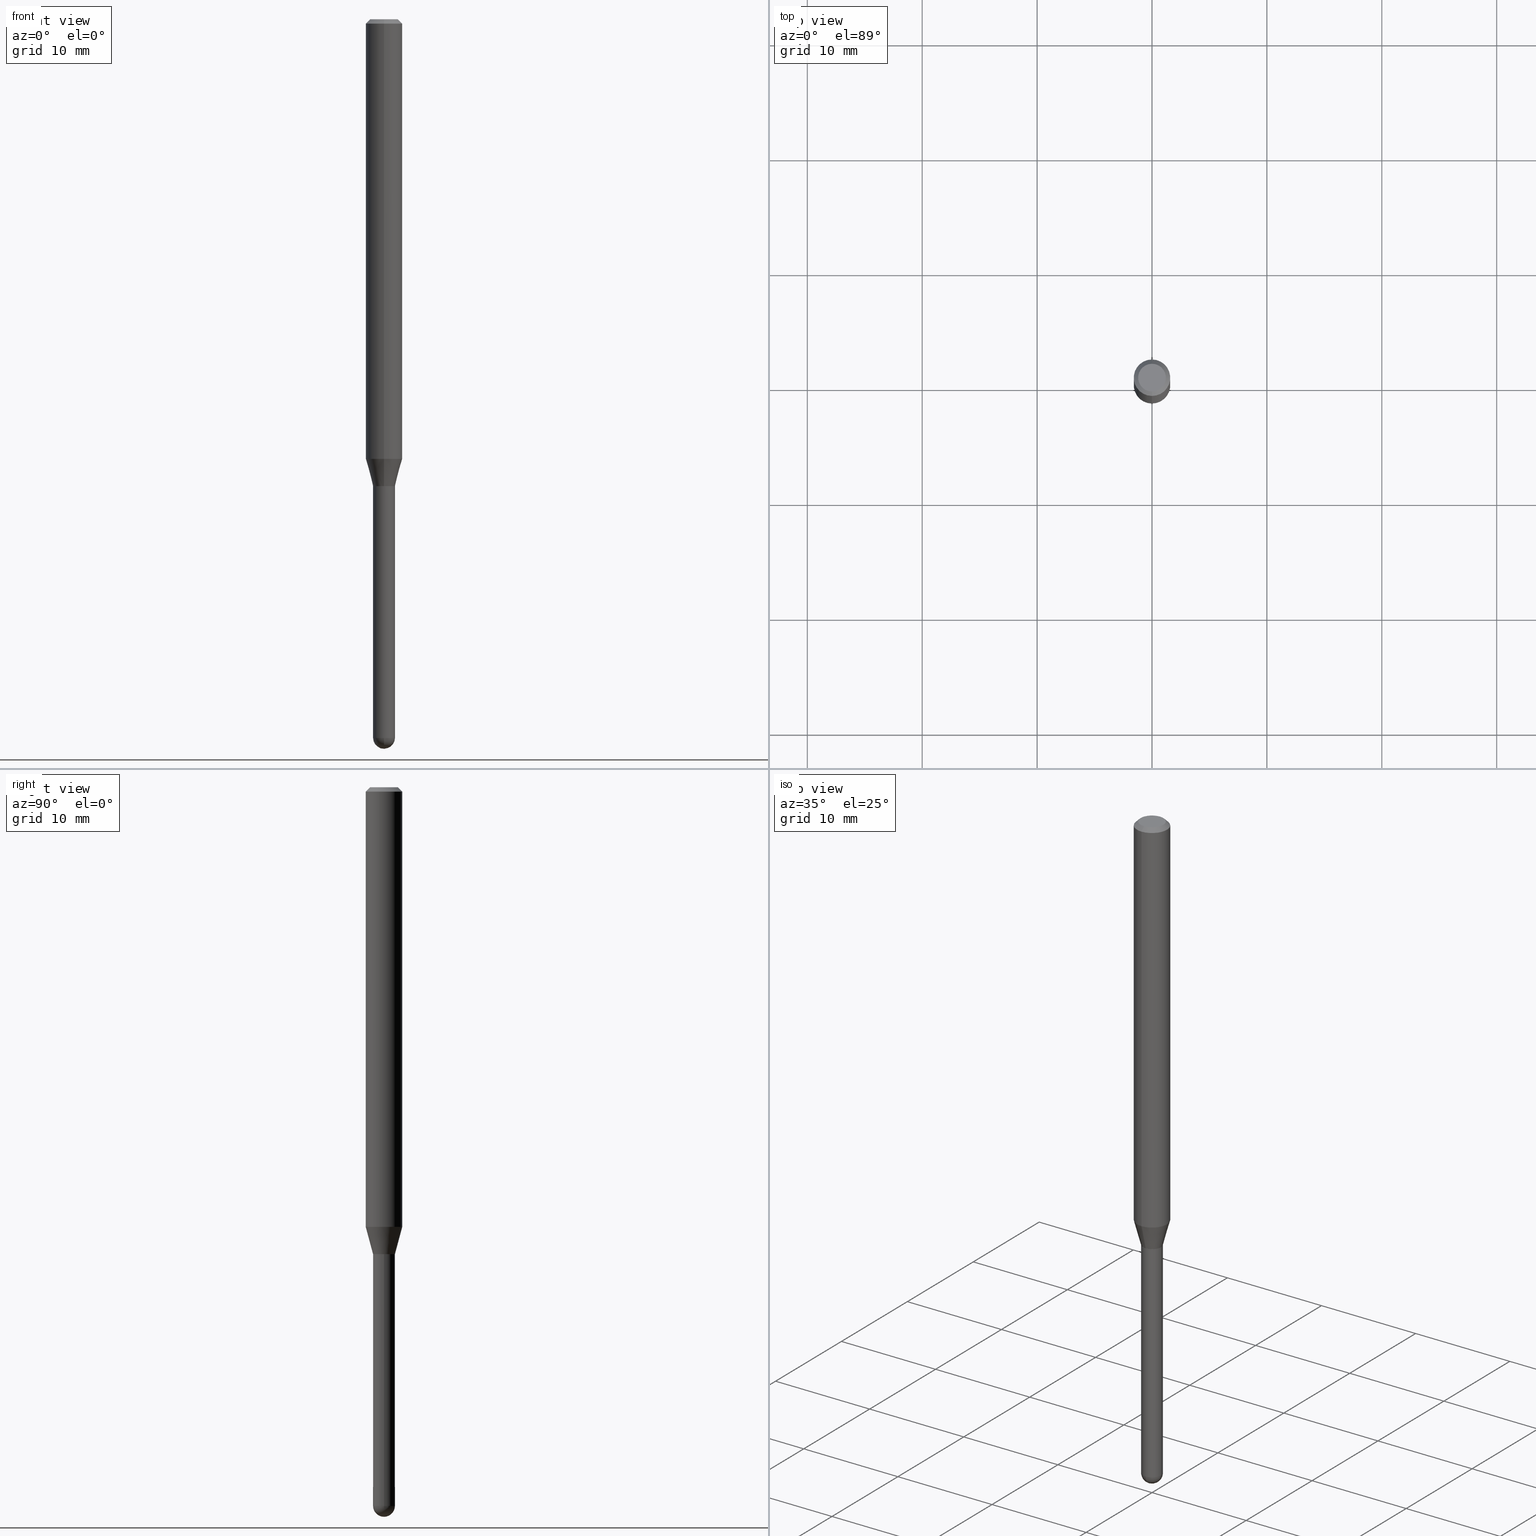
[diagram: canonical four-view strip — front | top / right | iso, engineering-drawing reading convention]
A machine part, canonical four-view strip (front | top / right | iso — engineering-drawing reading convention). The complete STEP part file that produces these views, byte-faithful:
ISO-10303-21;
HEADER;
FILE_DESCRIPTION (( 'STEP AP203' ),
    '1' );
FILE_NAME ('01571.STEP',
    '2024-03-07T19:40:47',
    ( '' ),
    ( '' ),
    'SwSTEP 2.0',
    'SolidWorks 2023',
    '' );
FILE_SCHEMA (( 'CONFIG_CONTROL_DESIGN' ));
ENDSEC;

DATA;
#1 = EDGE_LOOP ( 'NONE', ( #384, #500 ) ) ;
#2 = CARTESIAN_POINT ( 'NONE',  ( -3.773273898774340269E-16, -0.04749999999999999362, 1.569877303324816272E-16 ) ) ;
#3 = DIRECTION ( 'NONE',  ( -6.982962677686265133E-15, -1.000000000000000000, 0.000000000000000000 ) ) ;
#4 = CIRCLE ( 'NONE', #205, 0.04749999999999999362 ) ;
#5 = ORIENTED_EDGE ( 'NONE', *, *, #399, .F. ) ;
#6 = EDGE_CURVE ( 'NONE', #21, #375, #261, .T. ) ;
#7 = DIRECTION ( 'NONE',  ( -6.982962677686265133E-15, -1.000000000000000000, 0.000000000000000000 ) ) ;
#8 = LINE ( 'NONE', #198, #35 ) ;
#9 = CARTESIAN_POINT ( 'NONE',  ( 2.166417557961733430E-46, -3.093120138342473249E-32, -8.858976427199453981E-18 ) ) ;
#10 = CARTESIAN_POINT ( 'NONE',  ( 4.440892098500625669E-16, 0.06250000000000000000, -2.182193509995803137E-16 ) ) ;
#11 = DIRECTION ( 'NONE',  ( -2.445468806185136877E-29, 3.491481338843145188E-15, 1.000000000000000000 ) ) ;
#12 = DIRECTION ( 'NONE',  ( -6.982962677686266711E-15, -1.000000000000000000, 3.491509615993285019E-15 ) ) ;
#13 = DIRECTION ( 'NONE',  ( -1.000000000000000000, 6.982962677686265922E-15, -4.883557194083112901E-29 ) ) ;
#14 = EDGE_CURVE ( 'NONE', #59, #48, #174, .T. ) ;
#15 = VECTOR ( 'NONE', #454, 39.37007874015748854 ) ;
#16 = CC_DESIGN_APPROVAL ( #33, ( #145 ) ) ;
#17 = CARTESIAN_POINT ( 'NONE',  ( 2.664535259100761154E-16, 0.03749999999999432954, -1.600000000000000089 ) ) ;
#18 = PLANE ( 'NONE',  #238 ) ;
#19 = DIRECTION ( 'NONE',  ( -6.982962677686265922E-15, -1.000000000000000000, 0.000000000000000000 ) ) ;
#20 = DIRECTION ( 'NONE',  ( 0.000000000000000000, 0.000000000000000000, 1.000000000000000000 ) ) ;
#21 = VERTEX_POINT ( 'NONE', #131 ) ;
#22 = ORIENTED_EDGE ( 'NONE', *, *, #424, .T. ) ;
#23 = DIRECTION ( 'NONE',  ( 6.982962677686265922E-15, 1.000000000000000000, -3.483106191921935554E-15 ) ) ;
#24 = AXIS2_PLACEMENT_3D ( 'NONE', #213, #13, #256 ) ;
#25 = ADVANCED_FACE ( 'NONE', ( #395 ), #371, .T. ) ;
#26 = AXIS2_PLACEMENT_3D ( 'NONE', #488, #412, #7 ) ;
#27 = APPROVAL_ROLE ( '' ) ;
#28 = PRODUCT_DEFINITION_SHAPE ( 'NONE', 'NONE',  #276 ) ;
#29 = LINE ( 'NONE', #336, #15 ) ;
#30 = PERSON ( 'UNSPECIFIED', 'UNSPECIFIED', 'UNSPECIFIED', ('UNSPECIFIED'), ('UNSPECIFIED'), ('UNSPECIFIED') ) ;
#31 = ORIENTED_EDGE ( 'NONE', *, *, #57, .F. ) ;
#32 = DIRECTION ( 'NONE',  ( -4.937700262164674260E-15, -0.7071067811865632269, 0.7071067811865319186 ) ) ;
#33 = APPROVAL ( #233, 'UNSPECIFIED' ) ;
#34 = EDGE_CURVE ( 'NONE', #180, #375, #354, .T. ) ;
#35 = VECTOR ( 'NONE', #512, 39.37007874015748143 ) ;
#36 = ORIENTED_EDGE ( 'NONE', *, *, #285, .T. ) ;
#37 = CARTESIAN_POINT ( 'NONE',  ( 3.684554993056453999E-29, -5.260653103539211271E-15, -1.506698729810781012 ) ) ;
#38 = CARTESIAN_POINT ( 'NONE',  ( 0.03749999999999999861, -5.848231242562268092E-15, -1.600000000000000089 ) ) ;
#39 = FACE_OUTER_BOUND ( 'NONE', #431, .T. ) ;
#40 = CLOSED_SHELL ( 'NONE', ( #49, #209, #393, #193, #349 ) ) ;
#41 = LOCAL_TIME ( 14, 40, 47.00000000000000000, #503 ) ;
#42 = MANIFOLD_SOLID_BREP ( 'Body-Move/Copy2[2]', #297 ) ;
#43 = DIRECTION ( 'NONE',  ( -1.000000000000000000, 6.982962677686265922E-15, -4.876176775795935793E-29 ) ) ;
#44 = VERTEX_POINT ( 'NONE', #38 ) ;
#45 = CARTESIAN_POINT ( 'NONE',  ( 3.912718496570769663E-29, -5.586415385589256819E-15, -1.600000000000000089 ) ) ;
#46 = DIRECTION ( 'NONE',  ( -2.445468806185136597E-29, 3.491481338843145583E-15, 1.000000000000000000 ) ) ;
#47 =( NAMED_UNIT ( * ) SI_UNIT ( $, .STERADIAN. ) SOLID_ANGLE_UNIT ( ) );
#48 = VERTEX_POINT ( 'NONE', #439 ) ;
#49 = ADVANCED_FACE ( 'NONE', ( #362 ), #159, .T. ) ;
#50 = LINE ( 'NONE', #10, #88 ) ;
#51 = AXIS2_PLACEMENT_3D ( 'NONE', #112, #110, #23 ) ;
#52 = AXIS2_PLACEMENT_3D ( 'NONE', #9, #252, #12 ) ;
#53 = DIRECTION ( 'NONE',  ( -6.982962677686265133E-15, -1.000000000000000000, 0.000000000000000000 ) ) ;
#54 = DIRECTION ( 'NONE',  ( -2.445449060356730759E-29, 3.491509615993285413E-15, 1.000000000000000000 ) ) ;
#55 = ORIENTED_EDGE ( 'NONE', *, *, #242, .F. ) ;
#56 = CARTESIAN_POINT ( 'NONE',  ( 0.03749999999999999861, -2.618611004132350016E-16, 1.828566290923475922E-30 ) ) ;
#57 = EDGE_CURVE ( 'NONE', #358, #477, #119, .T. ) ;
#58 = CARTESIAN_POINT ( 'NONE',  ( 0.000000000000000000, 0.000000000000000000, 0.000000000000000000 ) ) ;
#59 = VERTEX_POINT ( 'NONE', #89 ) ;
#60 = DIRECTION ( 'NONE',  ( -2.445449060356730759E-29, 3.491509615993285413E-15, 1.000000000000000000 ) ) ;
#61 = DIRECTION ( 'NONE',  ( -2.445449060356730759E-29, 3.491509615993285413E-15, 1.000000000000000000 ) ) ;
#62 = AXIS2_PLACEMENT_3D ( 'NONE', #402, #46, #204 ) ;
#63 = SECURITY_CLASSIFICATION_LEVEL ( 'unclassified' ) ;
#64 = ADVANCED_BREP_SHAPE_REPRESENTATION ( '01571', ( #389, #42, #81 ), #239 ) ;
#65 = ORIENTED_EDGE ( 'NONE', *, *, #115, .F. ) ;
#66 = LINE ( 'NONE', #17, #167 ) ;
#67 = ADVANCED_FACE ( 'NONE', ( #315 ), #425, .T. ) ;
#68 = APPLICATION_PROTOCOL_DEFINITION ( 'international standard', 'config_control_design', 1994, #441 ) ;
#69 = ORIENTED_EDGE ( 'NONE', *, *, #259, .T. ) ;
#70 = ORIENTED_EDGE ( 'NONE', *, *, #416, .T. ) ;
#71 = EDGE_CURVE ( 'NONE', #310, #144, #272, .T. ) ;
#72 = ADVANCED_FACE ( 'NONE', ( #274 ), #430, .F. ) ;
#73 = DIRECTION ( 'NONE',  ( 1.000000000000000000, 0.000000000000000000, 0.000000000000000000 ) ) ;
#74 = ORIENTED_EDGE ( 'NONE', *, *, #321, .F. ) ;
#75 = CARTESIAN_POINT ( 'NONE',  ( 6.021966935230899318E-29, -8.597772796901246653E-15, -2.462500000000000355 ) ) ;
#76 = CIRCLE ( 'NONE', #478, 0.06250000000000000000 ) ;
#77 = PERSON_AND_ORGANIZATION ( #30, #120 ) ;
#78 = CARTESIAN_POINT ( 'NONE',  ( 4.364351673553919652E-16, 0.06249999999999995143, -0.01500000000000022669 ) ) ;
#79 = ORIENTED_EDGE ( 'NONE', *, *, #416, .F. ) ;
#80 = CIRCLE ( 'NONE', #381, 0.03749999999999999861 ) ;
#81 = AXIS2_PLACEMENT_3D ( 'NONE', #462, #20, #73 ) ;
#82 = DIRECTION ( 'NONE',  ( -2.445449060356730759E-29, 3.491509615993285413E-15, 1.000000000000000000 ) ) ;
#83 = DIRECTION ( 'NONE',  ( -2.445468806185136597E-29, 3.491481338843145583E-15, 1.000000000000000000 ) ) ;
#84 = ORIENTED_EDGE ( 'NONE', *, *, #268, .T. ) ;
#85 = DIRECTION ( 'NONE',  ( -2.445449060356730759E-29, 3.491509615993285413E-15, 1.000000000000000000 ) ) ;
#86 = CONICAL_SURFACE ( 'NONE', #497, 0.03699999999999999817, 0.7853981633974739252 ) ;
#87 = FACE_OUTER_BOUND ( 'NONE', #387, .T. ) ;
#88 = VECTOR ( 'NONE', #125, 39.37007874015748143 ) ;
#89 = CARTESIAN_POINT ( 'NONE',  ( -4.364351673553912750E-16, -0.06250000000000005551, -0.01499999999999979128 ) ) ;
#90 = CYLINDRICAL_SURFACE ( 'NONE', #103, 0.06250000000000000000 ) ;
#91 = ORIENTED_EDGE ( 'NONE', *, *, #285, .F. ) ;
#92 = CARTESIAN_POINT ( 'NONE',  ( -0.03749999999999999861, 2.664535259100375598E-16, -1.844600658845589808E-30 ) ) ;
#93 = FACE_OUTER_BOUND ( 'NONE', #265, .T. ) ;
#94 = CARTESIAN_POINT ( 'NONE',  ( 3.912718496570770223E-29, -5.586415385589257608E-15, -1.600000000000000311 ) ) ;
#95 = CC_DESIGN_DATE_AND_TIME_ASSIGNMENT ( #179, #303, ( #276 ) ) ;
#96 = CIRCLE ( 'NONE', #156, 0.03749999999999992228 ) ;
#97 = CARTESIAN_POINT ( 'NONE',  ( 3.912718496570770223E-29, -5.586415385589257608E-15, -1.600000000000000311 ) ) ;
#98 = CARTESIAN_POINT ( 'NONE',  ( 3.668173590535098836E-31, -5.237264423989931719E-17, -0.01500000000000000812 ) ) ;
#99 = ORIENTED_EDGE ( 'NONE', *, *, #34, .F. ) ;
#100 = EDGE_CURVE ( 'NONE', #375, #21, #312, .T. ) ;
#101 = CARTESIAN_POINT ( 'NONE',  ( 6.112068578670630349E-29, -8.730999559856264176E-15, -2.500000000000000000 ) ) ;
#102 = DATE_AND_TIME ( #456, #383 ) ;
#103 = AXIS2_PLACEMENT_3D ( 'NONE', #132, #251, #406 ) ;
#104 = ORIENTED_EDGE ( 'NONE', *, *, #128, .T. ) ;
#105 = AXIS2_PLACEMENT_3D ( 'NONE', #58, #61, #403 ) ;
#106 = SHAPE_DEFINITION_REPRESENTATION ( #28, #64 ) ;
#107 = ADVANCED_FACE ( 'NONE', ( #461 ), #466, .T. ) ;
#108 = VERTEX_POINT ( 'NONE', #423 ) ;
#109 = DIRECTION ( 'NONE',  ( 6.982962677686265922E-15, 1.000000000000000000, -3.491509615993285413E-15 ) ) ;
#110 = DIRECTION ( 'NONE',  ( 2.445449060356730759E-29, -3.491509615993285413E-15, -1.000000000000000000 ) ) ;
#111 = EDGE_LOOP ( 'NONE', ( #91, #318, #352, #334 ) ) ;
#112 = CARTESIAN_POINT ( 'NONE',  ( 3.668173590535098836E-31, -5.237264423989931719E-17, -0.01500000000000000812 ) ) ;
#113 = ORIENTED_EDGE ( 'NONE', *, *, #259, .F. ) ;
#114 = DIRECTION ( 'NONE',  ( 6.982962677686265133E-15, 1.000000000000000000, 0.000000000000000000 ) ) ;
#115 = EDGE_CURVE ( 'NONE', #477, #192, #181, .T. ) ;
#116 = VECTOR ( 'NONE', #164, 39.37007874015748143 ) ;
#117 = AXIS2_PLACEMENT_3D ( 'NONE', #394, #83, #400 ) ;
#118 = PRODUCT_RELATED_PRODUCT_CATEGORY ( 'detail', '', ( #224 ) ) ;
#119 = CIRCLE ( 'NONE', #364, 0.03749999999999999861 ) ;
#120 = ORGANIZATION ( 'UNSPECIFIED', 'UNSPECIFIED', '' ) ;
#121 = ORIENTED_EDGE ( 'NONE', *, *, #376, .T. ) ;
#122 = CARTESIAN_POINT ( 'NONE',  ( 6.021966935230899318E-29, -8.597772796901246653E-15, -2.462500000000000355 ) ) ;
#123 = DESIGN_CONTEXT ( 'detailed design', #441, 'design' ) ;
#124 = DIRECTION ( 'NONE',  ( 1.000000000000000000, -6.982962677686268288E-15, 0.000000000000000000 ) ) ;
#125 = DIRECTION ( 'NONE',  ( -2.445449060356731039E-29, 3.491509615993285413E-15, 1.000000000000000000 ) ) ;
#126 = ORIENTED_EDGE ( 'NONE', *, *, #437, .F. ) ;
#127 = DIRECTION ( 'NONE',  ( -2.445449060356730759E-29, 3.491509615993285413E-15, 1.000000000000000000 ) ) ;
#128 = EDGE_CURVE ( 'NONE', #310, #189, #29, .T. ) ;
#129 = AXIS2_PLACEMENT_3D ( 'NONE', #183, #143, #228 ) ;
#130 = CYLINDRICAL_SURFACE ( 'NONE', #105, 0.03750000000000005412 ) ;
#131 = CARTESIAN_POINT ( 'NONE',  ( -2.618611004131981224E-16, -0.03750000000000591055, -1.599500000000000144 ) ) ;
#132 = CARTESIAN_POINT ( 'NONE',  ( 0.000000000000000000, 0.000000000000000000, 0.000000000000000000 ) ) ;
#133 = CARTESIAN_POINT ( 'NONE',  ( -2.618611004132353468E-16, -0.03750000000000005412, 1.309316105997484101E-16 ) ) ;
#134 = CARTESIAN_POINT ( 'NONE',  ( 3.668173590535098836E-31, -5.237264423989931719E-17, -0.01500000000000000812 ) ) ;
#135 = AXIS2_PLACEMENT_3D ( 'NONE', #243, #187, #269 ) ;
#136 = EDGE_CURVE ( 'NONE', #108, #48, #465, .T. ) ;
#137 = LINE ( 'NONE', #133, #507 ) ;
#138 = APPROVAL ( #229, 'UNSPECIFIED' ) ;
#139 = PERSON_AND_ORGANIZATION_ROLE ( 'creator' ) ;
#140 = VERTEX_POINT ( 'NONE', #101 ) ;
#141 = PERSON_AND_ORGANIZATION_ROLE ( 'design_supplier' ) ;
#142 = DIRECTION ( 'NONE',  ( 2.445449060356730479E-29, -3.491509615993285413E-15, -1.000000000000000000 ) ) ;
#143 = DIRECTION ( 'NONE',  ( -2.445449060356730759E-29, 3.491509615993285413E-15, 1.000000000000000000 ) ) ;
#144 = VERTEX_POINT ( 'NONE', #495 ) ;
#145 = PRODUCT_DEFINITION_FORMATION_WITH_SPECIFIED_SOURCE ( 'ANY', '', #224, .NOT_KNOWN. ) ;
#146 = COORDINATED_UNIVERSAL_TIME_OFFSET ( 5, 0, .BEHIND. ) ;
#147 = ORIENTED_EDGE ( 'NONE', *, *, #57, .T. ) ;
#148 = DIRECTION ( 'NONE',  ( -2.445468806185136597E-29, 3.491481338843145583E-15, 1.000000000000000000 ) ) ;
#149 = CARTESIAN_POINT ( 'NONE',  ( 0.000000000000000000, 0.000000000000000000, 0.000000000000000000 ) ) ;
#150 = DATE_AND_TIME ( #459, #299 ) ;
#151 = ORIENTED_EDGE ( 'NONE', *, *, #268, .F. ) ;
#152 = EDGE_CURVE ( 'NONE', #180, #443, #470, .T. ) ;
#153 = PERSON_AND_ORGANIZATION_ROLE ( 'classification_officer' ) ;
#154 = VERTEX_POINT ( 'NONE', #323 ) ;
#155 = DIRECTION ( 'NONE',  ( -2.445449060356730759E-29, 3.491509615993285413E-15, 1.000000000000000000 ) ) ;
#156 = AXIS2_PLACEMENT_3D ( 'NONE', #215, #452, #247 ) ;
#157 = CC_DESIGN_APPROVAL ( #160, ( #365 ) ) ;
#158 = CC_DESIGN_PERSON_AND_ORGANIZATION_ASSIGNMENT ( #415, #141, ( #145 ) ) ;
#159 = CYLINDRICAL_SURFACE ( 'NONE', #351, 0.03749999999999999861 ) ;
#160 = APPROVAL ( #374, 'UNSPECIFIED' ) ;
#161 = VECTOR ( 'NONE', #11, 39.37007874015748143 ) ;
#162 = CC_DESIGN_SECURITY_CLASSIFICATION ( #365, ( #145 ) ) ;
#163 = DIRECTION ( 'NONE',  ( -2.445468806185136597E-29, 3.491481338843145583E-15, 1.000000000000000000 ) ) ;
#164 = DIRECTION ( 'NONE',  ( 5.024295867788190974E-15, 0.7071067811865681119, 0.7071067811865270336 ) ) ;
#165 = EDGE_CURVE ( 'NONE', #144, #375, #253, .T. ) ;
#166 = FACE_OUTER_BOUND ( 'NONE', #263, .T. ) ;
#167 = VECTOR ( 'NONE', #222, 39.37007874015748143 ) ;
#168 = FACE_OUTER_BOUND ( 'NONE', #1, .T. ) ;
#169 =( LENGTH_UNIT ( ) NAMED_UNIT ( * ) SI_UNIT ( $, .METRE. ) );
#170 = CARTESIAN_POINT ( 'NONE',  ( 4.440892098500991010E-16, 0.06249999999999470562, -1.506698729810781234 ) ) ;
#171 = EDGE_CURVE ( 'NONE', #182, #48, #50, .T. ) ;
#172 = FACE_OUTER_BOUND ( 'NONE', #280, .T. ) ;
#173 = CARTESIAN_POINT ( 'NONE',  ( 6.021966935230899318E-29, -8.597772796901246653E-15, -2.462500000000000355 ) ) ;
#174 = CIRCLE ( 'NONE', #360, 0.06250000000000000000 ) ;
#175 = AXIS2_PLACEMENT_3D ( 'NONE', #464, #422, #114 ) ;
#176 = ORIENTED_EDGE ( 'NONE', *, *, #71, .F. ) ;
#177 = EDGE_CURVE ( 'NONE', #421, #59, #8, .T. ) ;
#178 = PERSON_AND_ORGANIZATION_ROLE ( 'creator' ) ;
#179 = DATE_AND_TIME ( #306, #41 ) ;
#180 = VERTEX_POINT ( 'NONE', #475 ) ;
#181 = CIRCLE ( 'NONE', #397, 0.03749999999999999861 ) ;
#182 = VERTEX_POINT ( 'NONE', #170 ) ;
#183 = CARTESIAN_POINT ( 'NONE',  ( 3.912718496570769663E-29, -5.586415385589256819E-15, -1.600000000000000089 ) ) ;
#184 = CONICAL_SURFACE ( 'NONE', #232, 0.06250000000000000000, 0.7853981633974483900 ) ;
#185 = PERSON_AND_ORGANIZATION ( #30, #120 ) ;
#186 = ORIENTED_EDGE ( 'NONE', *, *, #152, .T. ) ;
#187 = DIRECTION ( 'NONE',  ( -2.445449060356730759E-29, 3.491509615993285413E-15, 1.000000000000000000 ) ) ;
#188 = COORDINATED_UNIVERSAL_TIME_OFFSET ( 5, 0, .BEHIND. ) ;
#189 = VERTEX_POINT ( 'NONE', #327 ) ;
#190 = AXIS2_PLACEMENT_3D ( 'NONE', #37, #155, #195 ) ;
#191 = DIMENSIONAL_EXPONENTS ( 1.000000000000000000, 0.000000000000000000, 0.000000000000000000, 0.000000000000000000, 0.000000000000000000, 0.000000000000000000, 0.000000000000000000 ) ;
#192 = VERTEX_POINT ( 'NONE', #282 ) ;
#193 = ADVANCED_FACE ( 'NONE', ( #166 ), #369, .T. ) ;
#194 = EDGE_LOOP ( 'NONE', ( #348, #201, #345, #221 ) ) ;
#195 = DIRECTION ( 'NONE',  ( -6.982962677686265922E-15, -1.000000000000000000, 4.370956789862821150E-15 ) ) ;
#196 = CARTESIAN_POINT ( 'NONE',  ( 3.911495772040591333E-29, -5.584669630781260382E-15, -1.599500000000000144 ) ) ;
#197 = CIRCLE ( 'NONE', #26, 0.03699999999999999817 ) ;
#198 = CARTESIAN_POINT ( 'NONE',  ( -4.287811248607203282E-16, -0.06250000000000005551, -0.01499999999999979128 ) ) ;
#199 = LINE ( 'NONE', #314, #487 ) ;
#200 = DIRECTION ( 'NONE',  ( -2.445449060356730759E-29, 3.491509615993285413E-15, 1.000000000000000000 ) ) ;
#201 = ORIENTED_EDGE ( 'NONE', *, *, #424, .F. ) ;
#202 = DIRECTION ( 'NONE',  ( -2.445468806185136877E-29, 3.491481338843145188E-15, 1.000000000000000000 ) ) ;
#203 = ORIENTED_EDGE ( 'NONE', *, *, #242, .T. ) ;
#204 = DIRECTION ( 'NONE',  ( 1.000000000000000000, -6.982962677686268288E-15, 0.000000000000000000 ) ) ;
#205 = AXIS2_PLACEMENT_3D ( 'NONE', #499, #419, #227 ) ;
#206 = CARTESIAN_POINT ( 'NONE',  ( -2.664535259099770148E-16, -0.03750000000000855427, -2.462500000000000355 ) ) ;
#207 = CIRCLE ( 'NONE', #175, 0.03749999999999990841 ) ;
#208 = DIRECTION ( 'NONE',  ( -1.000000000000000000, 6.982962677686265922E-15, -4.883557194083112901E-29 ) ) ;
#209 = ADVANCED_FACE ( 'NONE', ( #87 ), #485, .T. ) ;
#210 = DIRECTION ( 'NONE',  ( 6.982962677686265922E-15, 1.000000000000000000, -3.483106191921935554E-15 ) ) ;
#211 = EDGE_LOOP ( 'NONE', ( #271, #328, #405, #5 ) ) ;
#212 = FACE_OUTER_BOUND ( 'NONE', #337, .T. ) ;
#213 = CARTESIAN_POINT ( 'NONE',  ( 6.018760061646477031E-29, -8.602365222398048274E-15, -2.462500000000000355 ) ) ;
#214 = ORIENTED_EDGE ( 'NONE', *, *, #356, .T. ) ;
#215 = CARTESIAN_POINT ( 'NONE',  ( 3.912718496570769663E-29, -5.586415385589256819E-15, -1.600000000000000089 ) ) ;
#216 = CYLINDRICAL_SURFACE ( 'NONE', #471, 0.06250000000000000000 ) ;
#217 = AXIS2_PLACEMENT_3D ( 'NONE', #45, #82, #240 ) ;
#218 = ADVANCED_FACE ( 'NONE', ( #413 ), #86, .T. ) ;
#219 = CARTESIAN_POINT ( 'NONE',  ( 6.018760061646477031E-29, -8.602365222398048274E-15, -2.462500000000000355 ) ) ;
#220 = COORDINATED_UNIVERSAL_TIME_OFFSET ( 5, 0, .BEHIND. ) ;
#221 = ORIENTED_EDGE ( 'NONE', *, *, #447, .T. ) ;
#222 = DIRECTION ( 'NONE',  ( 1.839019923739652775E-15, 0.2588190451025323413, 0.9659258262890650926 ) ) ;
#223 = DATE_TIME_ROLE ( 'classification_date' ) ;
#224 = PRODUCT ( '01571', '01571', '', ( #426 ) ) ;
#225 = ORIENTED_EDGE ( 'NONE', *, *, #237, .F. ) ;
#226 = ORIENTED_EDGE ( 'NONE', *, *, #433, .T. ) ;
#227 = DIRECTION ( 'NONE',  ( -6.982962677686266711E-15, -1.000000000000000000, 3.491509615993285019E-15 ) ) ;
#228 = DIRECTION ( 'NONE',  ( -6.982962677686265133E-15, -1.000000000000000000, 0.000000000000000000 ) ) ;
#229 = APPROVAL_STATUS ( 'not_yet_approved' ) ;
#230 = ORIENTED_EDGE ( 'NONE', *, *, #356, .F. ) ;
#231 = AXIS2_PLACEMENT_3D ( 'NONE', #173, #329, #241 ) ;
#232 = AXIS2_PLACEMENT_3D ( 'NONE', #98, #289, #210 ) ;
#233 = APPROVAL_STATUS ( 'not_yet_approved' ) ;
#234 = ORIENTED_EDGE ( 'NONE', *, *, #376, .F. ) ;
#235 = DIRECTION ( 'NONE',  ( 4.937700262164548042E-15, 0.7071067811865451302, -0.7071067811865499042 ) ) ;
#236 = CC_DESIGN_PERSON_AND_ORGANIZATION_ASSIGNMENT ( #294, #382, ( #224 ) ) ;
#237 = EDGE_CURVE ( 'NONE', #144, #310, #96, .T. ) ;
#238 = AXIS2_PLACEMENT_3D ( 'NONE', #494, #142, #109 ) ;
#239 =( GEOMETRIC_REPRESENTATION_CONTEXT ( 3 ) GLOBAL_UNCERTAINTY_ASSIGNED_CONTEXT ( ( #313 ) ) GLOBAL_UNIT_ASSIGNED_CONTEXT ( ( #372, #319, #47 ) ) REPRESENTATION_CONTEXT ( 'NONE', 'WORKASPACE' ) );
#240 = DIRECTION ( 'NONE',  ( -6.982962677686265133E-15, -1.000000000000000000, 0.000000000000000000 ) ) ;
#241 = DIRECTION ( 'NONE',  ( 1.000000000000000000, -6.982962677686242256E-15, 0.000000000000000000 ) ) ;
#242 = EDGE_CURVE ( 'NONE', #44, #404, #284, .T. ) ;
#243 = CARTESIAN_POINT ( 'NONE',  ( 3.684554993056453999E-29, -5.260653103539211271E-15, -1.506698729810781012 ) ) ;
#244 = DIRECTION ( 'NONE',  ( -6.982962677686265133E-15, -1.000000000000000000, 0.000000000000000000 ) ) ;
#245 = CC_DESIGN_APPROVAL ( #138, ( #276 ) ) ;
#246 = CARTESIAN_POINT ( 'NONE',  ( 3.668173590535098836E-31, -5.237264423989931719E-17, -0.01500000000000000812 ) ) ;
#247 = DIRECTION ( 'NONE',  ( -6.982962677686265133E-15, -1.000000000000000000, 0.000000000000000000 ) ) ;
#248 = ORIENTED_EDGE ( 'NONE', *, *, #237, .T. ) ;
#249 = EDGE_LOOP ( 'NONE', ( #99, #186, #301, #304 ) ) ;
#250 = ADVANCED_FACE ( 'NONE', ( #93 ), #90, .T. ) ;
#251 = DIRECTION ( 'NONE',  ( -2.445449060356730759E-29, 3.491509615993285413E-15, 1.000000000000000000 ) ) ;
#252 = DIRECTION ( 'NONE',  ( -2.445449060356730759E-29, 3.491509615993285413E-15, 1.000000000000000000 ) ) ;
#253 = LINE ( 'NONE', #445, #407 ) ;
#254 = CIRCLE ( 'NONE', #135, 0.06250000000000000000 ) ;
#255 = DIRECTION ( 'NONE',  ( -2.445449060356730759E-29, 3.491509615993285413E-15, 1.000000000000000000 ) ) ;
#256 = DIRECTION ( 'NONE',  ( 6.982962677686265922E-15, 1.000000000000000000, 0.000000000000000000 ) ) ;
#257 = ORIENTED_EDGE ( 'NONE', *, *, #338, .T. ) ;
#258 = CARTESIAN_POINT ( 'NONE',  ( 6.018760061646477031E-29, -8.602365222398048274E-15, -2.462500000000000355 ) ) ;
#259 = EDGE_CURVE ( 'NONE', #144, #182, #66, .T. ) ;
#260 = CARTESIAN_POINT ( 'NONE',  ( 0.000000000000000000, 0.000000000000000000, 0.000000000000000000 ) ) ;
#261 = CIRCLE ( 'NONE', #432, 0.03750000000000019290 ) ;
#262 = APPROVAL_DATE_TIME ( #102, #160 ) ;
#263 = EDGE_LOOP ( 'NONE', ( #151, #391, #496, #65 ) ) ;
#264 = DIRECTION ( 'NONE',  ( -7.105427357601000281E-15, -1.000000000000000000, 0.000000000000000000 ) ) ;
#265 = EDGE_LOOP ( 'NONE', ( #498, #121, #70, #480 ) ) ;
#266 = APPLICATION_PROTOCOL_DEFINITION ( 'international standard', 'config_control_design', 1994, #288 ) ;
#267 = ORIENTED_EDGE ( 'NONE', *, *, #386, .F. ) ;
#268 = EDGE_CURVE ( 'NONE', #140, #477, #279, .T. ) ;
#269 = DIRECTION ( 'NONE',  ( -6.982962677686265922E-15, -1.000000000000000000, 4.370956789862821150E-15 ) ) ;
#270 = CALENDAR_DATE ( 2024, 7, 3 ) ;
#271 = ORIENTED_EDGE ( 'NONE', *, *, #511, .T. ) ;
#272 = CIRCLE ( 'NONE', #129, 0.03749999999999992228 ) ;
#273 = CYLINDRICAL_SURFACE ( 'NONE', #117, 0.03749999999999999861 ) ;
#274 = FACE_OUTER_BOUND ( 'NONE', #473, .T. ) ;
#275 = LOCAL_TIME ( 14, 40, 47.00000000000000000, #146 ) ;
#276 = PRODUCT_DEFINITION ( 'UNKNOWN', '', #145, #123 ) ;
#277 = ADVANCED_FACE ( 'NONE', ( #335 ), #18, .F. ) ;
#278 = ORIENTED_EDGE ( 'NONE', *, *, #433, .F. ) ;
#279 = CIRCLE ( 'NONE', #455, 0.03749999999999990841 ) ;
#280 = EDGE_LOOP ( 'NONE', ( #214, #492, #296, #79 ) ) ;
#281 = DIRECTION ( 'NONE',  ( -2.445468806185136597E-29, 3.491481338843145583E-15, 1.000000000000000000 ) ) ;
#282 = CARTESIAN_POINT ( 'NONE',  ( 0.03749999999999999861, -7.353932569938374479E-15, -2.462500000000000355 ) ) ;
#283 = DIRECTION ( 'NONE',  ( -2.445449060356730759E-29, 3.491509615993285413E-15, 1.000000000000000000 ) ) ;
#284 = CIRCLE ( 'NONE', #62, 0.03749999999999999861 ) ;
#285 = EDGE_CURVE ( 'NONE', #421, #108, #4, .T. ) ;
#286 = FACE_OUTER_BOUND ( 'NONE', #378, .T. ) ;
#287 = ORIENTED_EDGE ( 'NONE', *, *, #71, .T. ) ;
#288 = APPLICATION_CONTEXT ( 'configuration controlled 3d designs of mechanical parts and assemblies' ) ;
#289 = DIRECTION ( 'NONE',  ( 2.445449060356730759E-29, -3.491509615993285413E-15, -1.000000000000000000 ) ) ;
#290 = AXIS2_PLACEMENT_3D ( 'NONE', #292, #449, #367 ) ;
#291 = EDGE_CURVE ( 'NONE', #192, #154, #80, .T. ) ;
#292 = CARTESIAN_POINT ( 'NONE',  ( 3.912718496570770223E-29, -5.586415385589257608E-15, -1.600000000000000311 ) ) ;
#293 = DIRECTION ( 'NONE',  ( 6.982962677686265922E-15, 1.000000000000000000, 0.000000000000000000 ) ) ;
#294 = PERSON_AND_ORGANIZATION ( #30, #120 ) ;
#295 = DIRECTION ( 'NONE',  ( 1.000000000000000000, -6.982962677686242256E-15, 0.000000000000000000 ) ) ;
#296 = ORIENTED_EDGE ( 'NONE', *, *, #14, .F. ) ;
#297 = CLOSED_SHELL ( 'NONE', ( #474, #218, #107, #482, #25, #505, #250, #469, #277, #489, #67, #72 ) ) ;
#298 = PERSON_AND_ORGANIZATION ( #30, #120 ) ;
#299 = LOCAL_TIME ( 14, 40, 47.00000000000000000, #188 ) ;
#300 = APPROVAL_ROLE ( '' ) ;
#301 = ORIENTED_EDGE ( 'NONE', *, *, #399, .T. ) ;
#302 = CARTESIAN_POINT ( 'NONE',  ( -2.618611004131953121E-16, -0.03750000000000550809, -1.600000000000000089 ) ) ;
#303 = DATE_TIME_ROLE ( 'creation_date' ) ;
#304 = ORIENTED_EDGE ( 'NONE', *, *, #100, .F. ) ;
#305 = CARTESIAN_POINT ( 'NONE',  ( 3.911495772040591333E-29, -5.584669630781260382E-15, -1.599500000000000144 ) ) ;
#306 = CALENDAR_DATE ( 2024, 7, 3 ) ;
#307 = AXIS2_PLACEMENT_3D ( 'NONE', #94, #200, #3 ) ;
#308 = CARTESIAN_POINT ( 'NONE',  ( -4.364351673553916201E-16, -0.06250000000000000000, 2.182193509995803137E-16 ) ) ;
#309 = VECTOR ( 'NONE', #202, 39.37007874015748143 ) ;
#310 = VERTEX_POINT ( 'NONE', #302 ) ;
#311 = ORIENTED_EDGE ( 'NONE', *, *, #437, .T. ) ;
#312 = CIRCLE ( 'NONE', #486, 0.03750000000000019290 ) ;
#313 = UNCERTAINTY_MEASURE_WITH_UNIT (LENGTH_MEASURE( 1.000000000000000082E-05 ), #372, 'distance_accuracy_value', 'NONE');
#314 = CARTESIAN_POINT ( 'NONE',  ( -2.583696190743526501E-16, -0.03700000000000558398, -1.600000000000000311 ) ) ;
#315 = FACE_OUTER_BOUND ( 'NONE', #249, .T. ) ;
#316 = CC_DESIGN_PERSON_AND_ORGANIZATION_ASSIGNMENT ( #420, #153, ( #365 ) ) ;
#317 = CARTESIAN_POINT ( 'NONE',  ( 2.618611004132740996E-16, 0.03749999999999441280, -1.600000000000000089 ) ) ;
#318 = ORIENTED_EDGE ( 'NONE', *, *, #177, .T. ) ;
#319 =( NAMED_UNIT ( * ) PLANE_ANGLE_UNIT ( ) SI_UNIT ( $, .RADIAN. ) );
#320 = ORIENTED_EDGE ( 'NONE', *, *, #128, .F. ) ;
#321 = EDGE_CURVE ( 'NONE', #192, #44, #410, .T. ) ;
#322 = AXIS2_PLACEMENT_3D ( 'NONE', #346, #163, #124 ) ;
#323 = CARTESIAN_POINT ( 'NONE',  ( 2.618611004132948565E-16, 0.03749999999999135275, -2.462500000000000355 ) ) ;
#324 = DIRECTION ( 'NONE',  ( -6.982962677686265922E-15, -1.000000000000000000, 3.491509615993285019E-15 ) ) ;
#325 = CC_DESIGN_PERSON_AND_ORGANIZATION_ASSIGNMENT ( #493, #178, ( #145 ) ) ;
#326 = DIRECTION ( 'NONE',  ( -2.445449060356730759E-29, 3.491509615993285413E-15, 1.000000000000000000 ) ) ;
#327 = CARTESIAN_POINT ( 'NONE',  ( -4.364351673553550860E-16, -0.06250000000000530131, -1.506698729810780790 ) ) ;
#328 = ORIENTED_EDGE ( 'NONE', *, *, #34, .T. ) ;
#329 = DIRECTION ( 'NONE',  ( -2.445468806185136597E-29, 3.491481338843145583E-15, 1.000000000000000000 ) ) ;
#330 = AXIS2_PLACEMENT_3D ( 'NONE', #149, #501, #385 ) ;
#331 = DIRECTION ( 'NONE',  ( -6.982962677686265133E-15, -1.000000000000000000, 0.000000000000000000 ) ) ;
#332 = CIRCLE ( 'NONE', #190, 0.06250000000000000000 ) ;
#333 = APPROVAL_DATE_TIME ( #340, #138 ) ;
#334 = ORIENTED_EDGE ( 'NONE', *, *, #136, .F. ) ;
#335 = FACE_OUTER_BOUND ( 'NONE', #342, .T. ) ;
#336 = CARTESIAN_POINT ( 'NONE',  ( -2.618611004131953121E-16, -0.03750000000000550809, -1.600000000000000089 ) ) ;
#337 = EDGE_LOOP ( 'NONE', ( #225, #343, #353, #278 ) ) ;
#338 = EDGE_CURVE ( 'NONE', #154, #358, #448, .T. ) ;
#339 = AXIS2_PLACEMENT_3D ( 'NONE', #258, #208, #293 ) ;
#340 = DATE_AND_TIME ( #270, #275 ) ;
#341 = VECTOR ( 'NONE', #479, 39.37007874015748143 ) ;
#342 = EDGE_LOOP ( 'NONE', ( #22, #36 ) ) ;
#343 = ORIENTED_EDGE ( 'NONE', *, *, #165, .T. ) ;
#344 = CALENDAR_DATE ( 2024, 7, 3 ) ;
#345 = ORIENTED_EDGE ( 'NONE', *, *, #136, .T. ) ;
#346 = CARTESIAN_POINT ( 'NONE',  ( 3.912750089896218667E-29, -5.586370142149033090E-15, -1.600000000000000089 ) ) ;
#347 = APPROVAL_DATE_TIME ( #150, #33 ) ;
#348 = ORIENTED_EDGE ( 'NONE', *, *, #177, .F. ) ;
#349 = ADVANCED_FACE ( 'NONE', ( #39 ), #273, .T. ) ;
#350 = LINE ( 'NONE', #308, #341 ) ;
#351 = AXIS2_PLACEMENT_3D ( 'NONE', #472, #396, #363 ) ;
#352 = ORIENTED_EDGE ( 'NONE', *, *, #14, .T. ) ;
#353 = ORIENTED_EDGE ( 'NONE', *, *, #100, .T. ) ;
#354 = LINE ( 'NONE', #506, #116 ) ;
#355 = CC_DESIGN_PERSON_AND_ORGANIZATION_ASSIGNMENT ( #77, #139, ( #276 ) ) ;
#356 = EDGE_CURVE ( 'NONE', #189, #182, #254, .T. ) ;
#357 = CARTESIAN_POINT ( 'NONE',  ( -0.03749999999999999861, -6.825617943615102854E-15, -1.600000000000000089 ) ) ;
#358 = VERTEX_POINT ( 'NONE', #509 ) ;
#359 = DIRECTION ( 'NONE',  ( -6.982962677686265922E-15, -1.000000000000000000, 3.483106191921935554E-15 ) ) ;
#360 = AXIS2_PLACEMENT_3D ( 'NONE', #246, #283, #359 ) ;
#361 = CONICAL_SURFACE ( 'NONE', #440, 0.03749999999999992228, 0.2617993877991579010 ) ;
#362 = FACE_OUTER_BOUND ( 'NONE', #401, .T. ) ;
#363 = DIRECTION ( 'NONE',  ( 1.000000000000000000, -6.982962677686266711E-15, 4.876176775795935793E-29 ) ) ;
#364 = AXIS2_PLACEMENT_3D ( 'NONE', #122, #281, #508 ) ;
#365 = SECURITY_CLASSIFICATION ( '', '', #63 ) ;
#366 = CARTESIAN_POINT ( 'NONE',  ( 3.912718496570769663E-29, -5.586415385589256819E-15, -1.600000000000000089 ) ) ;
#367 = DIRECTION ( 'NONE',  ( -6.982962677686265922E-15, -1.000000000000000000, 3.491509615993285413E-15 ) ) ;
#368 = DIRECTION ( 'NONE',  ( -1.000000000000000000, 7.105427357601001070E-15, -4.926315508542082329E-29 ) ) ;
#369 = SPHERICAL_SURFACE ( 'NONE', #24, 0.03749999999999990841 ) ;
#370 = ORIENTED_EDGE ( 'NONE', *, *, #6, .T. ) ;
#371 = CONICAL_SURFACE ( 'NONE', #217, 0.03749999999999992228, 0.2617993877991579010 ) ;
#372 =( CONVERSION_BASED_UNIT ( 'INCH', #444 ) LENGTH_UNIT ( ) NAMED_UNIT ( #191 ) );
#373 = LOCAL_TIME ( 14, 40, 47.00000000000000000, #220 ) ;
#374 = APPROVAL_STATUS ( 'not_yet_approved' ) ;
#375 = VERTEX_POINT ( 'NONE', #388 ) ;
#376 = EDGE_CURVE ( 'NONE', #182, #189, #332, .T. ) ;
#377 = PERSON_AND_ORGANIZATION ( #30, #120 ) ;
#378 = EDGE_LOOP ( 'NONE', ( #113, #248, #104, #234 ) ) ;
#379 = CARTESIAN_POINT ( 'NONE',  ( 6.021966935230899318E-29, -8.597772796901246653E-15, -2.462500000000000355 ) ) ;
#380 = DIRECTION ( 'NONE',  ( -2.445449060356730759E-29, 3.491509615993285413E-15, 1.000000000000000000 ) ) ;
#381 = AXIS2_PLACEMENT_3D ( 'NONE', #379, #148, #484 ) ;
#382 = PERSON_AND_ORGANIZATION_ROLE ( 'design_owner' ) ;
#383 = LOCAL_TIME ( 14, 40, 47.00000000000000000, #453 ) ;
#384 = ORIENTED_EDGE ( 'NONE', *, *, #511, .F. ) ;
#385 = DIRECTION ( 'NONE',  ( -6.982962677686265922E-15, -1.000000000000000000, 3.491509615993285808E-15 ) ) ;
#386 = EDGE_CURVE ( 'NONE', #404, #44, #392, .T. ) ;
#387 = EDGE_LOOP ( 'NONE', ( #418, #84, #31, #417 ) ) ;
#388 = CARTESIAN_POINT ( 'NONE',  ( 2.664535259100771015E-16, 0.03749999999999447525, -1.599500000000000144 ) ) ;
#389 = MANIFOLD_SOLID_BREP ( 'Body-Move/Copy2[1]', #40 ) ;
#390 = AXIS2_PLACEMENT_3D ( 'NONE', #436, #85, #244 ) ;
#391 = ORIENTED_EDGE ( 'NONE', *, *, #411, .T. ) ;
#392 = CIRCLE ( 'NONE', #322, 0.03749999999999999861 ) ;
#393 = ADVANCED_FACE ( 'NONE', ( #429 ), #460, .F. ) ;
#394 = CARTESIAN_POINT ( 'NONE',  ( 0.000000000000000000, 0.000000000000000000, 0.000000000000000000 ) ) ;
#395 = FACE_OUTER_BOUND ( 'NONE', #428, .T. ) ;
#396 = DIRECTION ( 'NONE',  ( -2.445468806185136597E-29, 3.491481338843145583E-15, 1.000000000000000000 ) ) ;
#397 = AXIS2_PLACEMENT_3D ( 'NONE', #75, #491, #295 ) ;
#398 = AXIS2_PLACEMENT_3D ( 'NONE', #317, #438, #43 ) ;
#399 = EDGE_CURVE ( 'NONE', #443, #21, #199, .T. ) ;
#400 = DIRECTION ( 'NONE',  ( 1.000000000000000000, -6.982962677686266711E-15, 4.876176775795935793E-29 ) ) ;
#401 = EDGE_LOOP ( 'NONE', ( #257, #311, #55, #74, #442 ) ) ;
#402 = CARTESIAN_POINT ( 'NONE',  ( 3.912750089896218667E-29, -5.586370142149033090E-15, -1.600000000000000089 ) ) ;
#403 = DIRECTION ( 'NONE',  ( -6.982962677686265922E-15, -1.000000000000000000, 3.491509615993285808E-15 ) ) ;
#404 = VERTEX_POINT ( 'NONE', #357 ) ;
#405 = ORIENTED_EDGE ( 'NONE', *, *, #6, .F. ) ;
#406 = DIRECTION ( 'NONE',  ( -6.982962677686265922E-15, -1.000000000000000000, 3.491509615993285019E-15 ) ) ;
#407 = VECTOR ( 'NONE', #450, 39.37007874015748143 ) ;
#408 = APPROVAL_PERSON_ORGANIZATION ( #185, #33, #300 ) ;
#409 = DIRECTION ( 'NONE',  ( -2.445449060356731039E-29, 3.491509615993285413E-15, 1.000000000000000000 ) ) ;
#410 = LINE ( 'NONE', #56, #161 ) ;
#411 = EDGE_CURVE ( 'NONE', #140, #154, #207, .T. ) ;
#412 = DIRECTION ( 'NONE',  ( -2.445449060356730759E-29, 3.491509615993285413E-15, 1.000000000000000000 ) ) ;
#413 = FACE_OUTER_BOUND ( 'NONE', #211, .T. ) ;
#414 = FACE_OUTER_BOUND ( 'NONE', #194, .T. ) ;
#415 = PERSON_AND_ORGANIZATION ( #30, #120 ) ;
#416 = EDGE_CURVE ( 'NONE', #189, #59, #350, .T. ) ;
#417 = ORIENTED_EDGE ( 'NONE', *, *, #338, .F. ) ;
#418 = ORIENTED_EDGE ( 'NONE', *, *, #411, .F. ) ;
#419 = DIRECTION ( 'NONE',  ( -2.445449060356730759E-29, 3.491509615993285413E-15, 1.000000000000000000 ) ) ;
#420 = PERSON_AND_ORGANIZATION ( #30, #120 ) ;
#421 = VERTEX_POINT ( 'NONE', #2 ) ;
#422 = DIRECTION ( 'NONE',  ( 1.000000000000000000, -6.982962677686265922E-15, 4.883557194083112340E-29 ) ) ;
#423 = CARTESIAN_POINT ( 'NONE',  ( 3.840629472727447874E-16, 0.04749999999999999362, -1.747056831868805136E-16 ) ) ;
#424 = EDGE_CURVE ( 'NONE', #108, #421, #468, .T. ) ;
#425 = CONICAL_SURFACE ( 'NONE', #390, 0.03699999999999999817, 0.7853981633974739252 ) ;
#426 = MECHANICAL_CONTEXT ( 'NONE', #288, 'mechanical' ) ;
#427 = APPROVAL_PERSON_ORGANIZATION ( #377, #138, #27 ) ;
#428 = EDGE_LOOP ( 'NONE', ( #287, #69, #230, #320 ) ) ;
#429 = FACE_OUTER_BOUND ( 'NONE', #458, .T. ) ;
#430 = CYLINDRICAL_SURFACE ( 'NONE', #330, 0.03750000000000005412 ) ;
#431 = EDGE_LOOP ( 'NONE', ( #126, #147, #510, #463, #267 ) ) ;
#432 = AXIS2_PLACEMENT_3D ( 'NONE', #196, #127, #481 ) ;
#433 = EDGE_CURVE ( 'NONE', #310, #21, #137, .T. ) ;
#434 = APPROVAL_PERSON_ORGANIZATION ( #298, #160, #490 ) ;
#435 = ORIENTED_EDGE ( 'NONE', *, *, #386, .T. ) ;
#436 = CARTESIAN_POINT ( 'NONE',  ( 3.912718496570770223E-29, -5.586415385589257608E-15, -1.600000000000000311 ) ) ;
#437 = EDGE_CURVE ( 'NONE', #358, #404, #446, .T. ) ;
#438 = DIRECTION ( 'NONE',  ( 2.438088387897960049E-29, -3.491481338843145188E-15, -1.000000000000000000 ) ) ;
#439 = CARTESIAN_POINT ( 'NONE',  ( 4.440892098500996926E-16, 0.06249999999999995837, -0.01500000000000022669 ) ) ;
#440 = AXIS2_PLACEMENT_3D ( 'NONE', #366, #255, #331 ) ;
#441 = APPLICATION_CONTEXT ( 'configuration controlled 3d designs of mechanical parts and assemblies' ) ;
#442 = ORIENTED_EDGE ( 'NONE', *, *, #291, .T. ) ;
#443 = VERTEX_POINT ( 'NONE', #476 ) ;
#444 = LENGTH_MEASURE_WITH_UNIT ( LENGTH_MEASURE( 0.02539999999999999897 ), #169 );
#445 = CARTESIAN_POINT ( 'NONE',  ( 2.664535259100379543E-16, 0.03750000000000005412, -1.309316105997484101E-16 ) ) ;
#446 = LINE ( 'NONE', #92, #309 ) ;
#447 = EDGE_CURVE ( 'NONE', #48, #59, #76, .T. ) ;
#448 = CIRCLE ( 'NONE', #231, 0.03749999999999999861 ) ;
#449 = DIRECTION ( 'NONE',  ( -2.445449060356730479E-29, 3.491509615993285413E-15, 1.000000000000000000 ) ) ;
#450 = DIRECTION ( 'NONE',  ( -2.445449060356731039E-29, 3.491509615993285413E-15, 1.000000000000000000 ) ) ;
#451 = PLANE ( 'NONE',  #290 ) ;
#452 = DIRECTION ( 'NONE',  ( -2.445449060356730759E-29, 3.491509615993285413E-15, 1.000000000000000000 ) ) ;
#453 = COORDINATED_UNIVERSAL_TIME_OFFSET ( 5, 0, .BEHIND. ) ;
#454 = DIRECTION ( 'NONE',  ( -1.807323732225381810E-15, -0.2588190451025255689, 0.9659258262890669799 ) ) ;
#455 = AXIS2_PLACEMENT_3D ( 'NONE', #219, #368, #264 ) ;
#456 = CALENDAR_DATE ( 2024, 7, 3 ) ;
#457 = ORIENTED_EDGE ( 'NONE', *, *, #165, .F. ) ;
#458 = EDGE_LOOP ( 'NONE', ( #203, #435 ) ) ;
#459 = CALENDAR_DATE ( 2024, 7, 3 ) ;
#460 = PLANE ( 'NONE',  #398 ) ;
#461 = FACE_OUTER_BOUND ( 'NONE', #111, .T. ) ;
#462 = CARTESIAN_POINT ( 'NONE',  ( 0.000000000000000000, 0.000000000000000000, 0.000000000000000000 ) ) ;
#463 = ORIENTED_EDGE ( 'NONE', *, *, #321, .T. ) ;
#464 = CARTESIAN_POINT ( 'NONE',  ( 6.018760061646477031E-29, -8.602365222398048274E-15, -2.462500000000000355 ) ) ;
#465 = LINE ( 'NONE', #78, #504 ) ;
#466 = CONICAL_SURFACE ( 'NONE', #51, 0.06250000000000000000, 0.7853981633974483900 ) ;
#467 = DATE_AND_TIME ( #344, #373 ) ;
#468 = CIRCLE ( 'NONE', #52, 0.04749999999999999362 ) ;
#469 = ADVANCED_FACE ( 'NONE', ( #414 ), #184, .T. ) ;
#470 = CIRCLE ( 'NONE', #307, 0.03699999999999999817 ) ;
#471 = AXIS2_PLACEMENT_3D ( 'NONE', #260, #326, #324 ) ;
#472 = CARTESIAN_POINT ( 'NONE',  ( 0.000000000000000000, 0.000000000000000000, 0.000000000000000000 ) ) ;
#473 = EDGE_LOOP ( 'NONE', ( #457, #176, #226, #370 ) ) ;
#474 = ADVANCED_FACE ( 'NONE', ( #212 ), #130, .F. ) ;
#475 = CARTESIAN_POINT ( 'NONE',  ( 2.646771690706770467E-16, 0.03699999999999440542, -1.600000000000000311 ) ) ;
#476 = CARTESIAN_POINT ( 'NONE',  ( -2.583696190743526501E-16, -0.03700000000000558398, -1.600000000000000311 ) ) ;
#477 = VERTEX_POINT ( 'NONE', #206 ) ;
#478 = AXIS2_PLACEMENT_3D ( 'NONE', #134, #54, #483 ) ;
#479 = DIRECTION ( 'NONE',  ( -2.445449060356731039E-29, 3.491509615993285413E-15, 1.000000000000000000 ) ) ;
#480 = ORIENTED_EDGE ( 'NONE', *, *, #447, .F. ) ;
#481 = DIRECTION ( 'NONE',  ( -6.982962677686265922E-15, -1.000000000000000000, 0.000000000000000000 ) ) ;
#482 = ADVANCED_FACE ( 'NONE', ( #172 ), #216, .T. ) ;
#483 = DIRECTION ( 'NONE',  ( -6.982962677686265922E-15, -1.000000000000000000, 3.483106191921935554E-15 ) ) ;
#484 = DIRECTION ( 'NONE',  ( 1.000000000000000000, -6.982962677686242256E-15, 0.000000000000000000 ) ) ;
#485 = SPHERICAL_SURFACE ( 'NONE', #339, 0.03749999999999990841 ) ;
#486 = AXIS2_PLACEMENT_3D ( 'NONE', #305, #380, #19 ) ;
#487 = VECTOR ( 'NONE', #32, 39.37007874015748143 ) ;
#488 = CARTESIAN_POINT ( 'NONE',  ( 3.912718496570770223E-29, -5.586415385589257608E-15, -1.600000000000000311 ) ) ;
#489 = ADVANCED_FACE ( 'NONE', ( #168 ), #451, .F. ) ;
#490 = APPROVAL_ROLE ( '' ) ;
#491 = DIRECTION ( 'NONE',  ( -2.445468806185136597E-29, 3.491481338843145583E-15, 1.000000000000000000 ) ) ;
#492 = ORIENTED_EDGE ( 'NONE', *, *, #171, .T. ) ;
#493 = PERSON_AND_ORGANIZATION ( #30, #120 ) ;
#494 = CARTESIAN_POINT ( 'NONE',  ( 3.316907271900976096E-16, 0.04749999999999999362, -1.702761949732807859E-16 ) ) ;
#495 = CARTESIAN_POINT ( 'NONE',  ( 3.552713678800878794E-16, 0.03749999999999432954, -1.600000000000000089 ) ) ;
#496 = ORIENTED_EDGE ( 'NONE', *, *, #291, .F. ) ;
#497 = AXIS2_PLACEMENT_3D ( 'NONE', #97, #60, #53 ) ;
#498 = ORIENTED_EDGE ( 'NONE', *, *, #171, .F. ) ;
#499 = CARTESIAN_POINT ( 'NONE',  ( 2.166417557961733430E-46, -3.093120138342473249E-32, -8.858976427199453981E-18 ) ) ;
#500 = ORIENTED_EDGE ( 'NONE', *, *, #152, .F. ) ;
#501 = DIRECTION ( 'NONE',  ( -2.445449060356730759E-29, 3.491509615993285413E-15, 1.000000000000000000 ) ) ;
#502 = CC_DESIGN_DATE_AND_TIME_ASSIGNMENT ( #467, #223, ( #365 ) ) ;
#503 = COORDINATED_UNIVERSAL_TIME_OFFSET ( 5, 0, .BEHIND. ) ;
#504 = VECTOR ( 'NONE', #235, 39.37007874015748143 ) ;
#505 = ADVANCED_FACE ( 'NONE', ( #286 ), #361, .T. ) ;
#506 = CARTESIAN_POINT ( 'NONE',  ( 2.629008122312761537E-16, 0.03699999999999440542, -1.600000000000000311 ) ) ;
#507 = VECTOR ( 'NONE', #409, 39.37007874015748143 ) ;
#508 = DIRECTION ( 'NONE',  ( 1.000000000000000000, -6.982962677686242256E-15, 0.000000000000000000 ) ) ;
#509 = CARTESIAN_POINT ( 'NONE',  ( -0.03749999999999999861, -6.825617943615102854E-15, -2.462500000000000355 ) ) ;
#510 = ORIENTED_EDGE ( 'NONE', *, *, #115, .T. ) ;
#511 = EDGE_CURVE ( 'NONE', #443, #180, #197, .T. ) ;
#512 = DIRECTION ( 'NONE',  ( -4.851104656540964275E-15, -0.7071067811865500152, -0.7071067811865450192 ) ) ;
ENDSEC;
END-ISO-10303-21;
